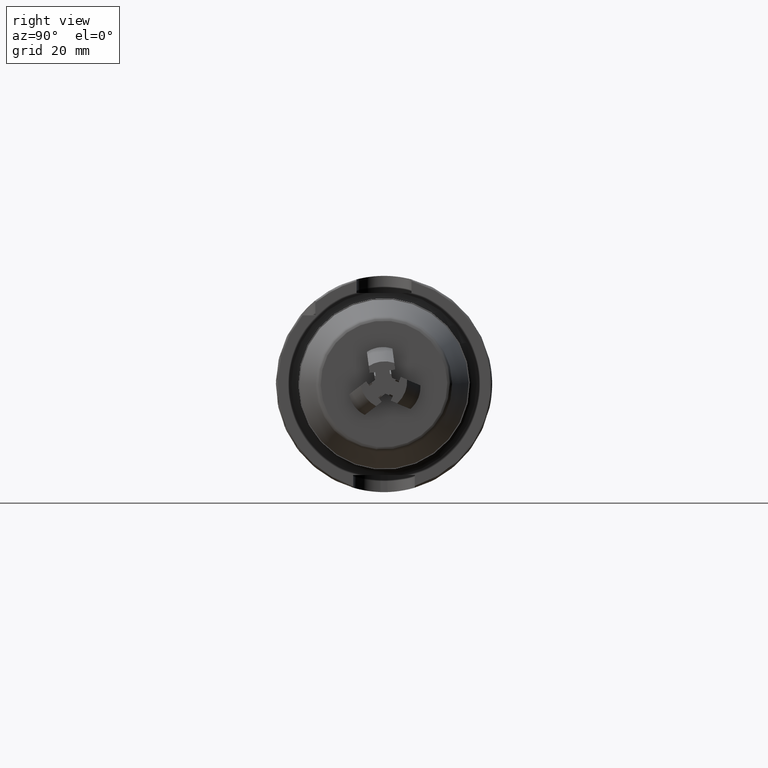
[diagram: clean part render]
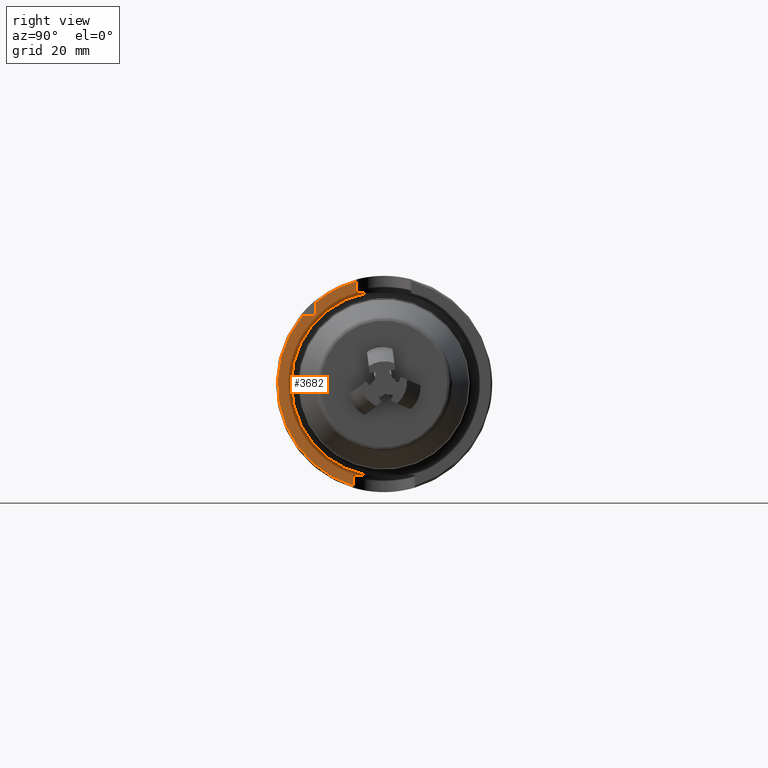
[diagram: same view with one face highlighted and labeled with its STEP entity id]
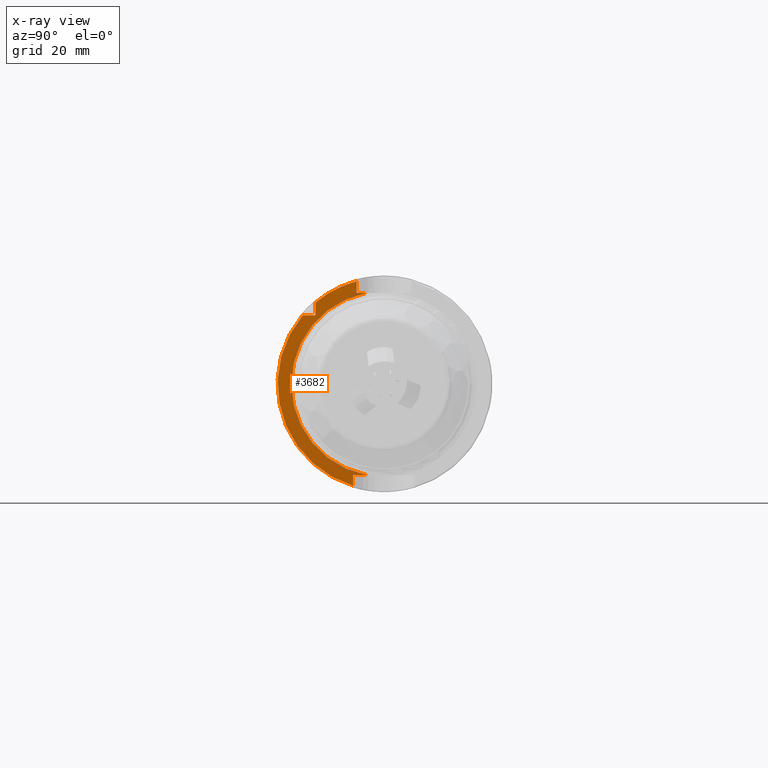
[diagram: x-ray of the same camera — body ghosted, the highlighted face saturated]
A machine part, right view. The second image highlights one B-rep face of the part: STEP entity #3682.
The next image is the same camera in x-ray: the body ghosted, the highlighted face saturated — about 0% of this face is hidden behind the body in this view.
In plain terms, the highlighted planar face has unit normal (1, 0, -0).
Its self-contained STEP definition (entity closure, byte-faithful):
#193=LINE('',#5748,#428);
#194=LINE('',#5750,#429);
#195=LINE('',#5754,#430);
#196=LINE('',#5756,#431);
#197=LINE('',#5760,#432);
#198=LINE('',#5761,#433);
#428=VECTOR('',#4548,10.);
#429=VECTOR('',#4549,10.);
#430=VECTOR('',#4552,10.);
#431=VECTOR('',#4553,10.);
#432=VECTOR('',#4556,10.);
#433=VECTOR('',#4557,10.);
#663=PLANE('',#4065);
#760=FACE_OUTER_BOUND('',#969,.T.);
#969=EDGE_LOOP('',(#2500,#2501,#2502,#2503,#2504,#2505,#2506,#2507,#2508));
#1275=CIRCLE('',#4062,27.);
#1278=CIRCLE('',#4066,31.);
#1279=CIRCLE('',#4067,31.);
#1520=VERTEX_POINT('',#5724);
#1521=VERTEX_POINT('',#5735);
#1523=VERTEX_POINT('',#5747);
#1524=VERTEX_POINT('',#5749);
#1525=VERTEX_POINT('',#5751);
#1526=VERTEX_POINT('',#5753);
#1527=VERTEX_POINT('',#5755);
#1528=VERTEX_POINT('',#5757);
#1529=VERTEX_POINT('',#5759);
#1915=EDGE_CURVE('',#1520,#1521,#1275,.T.);
#1919=EDGE_CURVE('',#1520,#1523,#193,.T.);
#1920=EDGE_CURVE('',#1523,#1524,#194,.T.);
#1921=EDGE_CURVE('',#1524,#1525,#1278,.T.);
#1922=EDGE_CURVE('',#1525,#1526,#195,.T.);
#1923=EDGE_CURVE('',#1526,#1527,#196,.T.);
#1924=EDGE_CURVE('',#1527,#1528,#1279,.T.);
#1925=EDGE_CURVE('',#1528,#1529,#197,.T.);
#1926=EDGE_CURVE('',#1529,#1521,#198,.T.);
#2500=ORIENTED_EDGE('',*,*,#1915,.F.);
#2501=ORIENTED_EDGE('',*,*,#1919,.T.);
#2502=ORIENTED_EDGE('',*,*,#1920,.T.);
#2503=ORIENTED_EDGE('',*,*,#1921,.T.);
#2504=ORIENTED_EDGE('',*,*,#1922,.T.);
#2505=ORIENTED_EDGE('',*,*,#1923,.T.);
#2506=ORIENTED_EDGE('',*,*,#1924,.T.);
#2507=ORIENTED_EDGE('',*,*,#1925,.T.);
#2508=ORIENTED_EDGE('',*,*,#1926,.T.);
#3682=ADVANCED_FACE('',(#760),#663,.T.);
#4062=AXIS2_PLACEMENT_3D('',#5736,#4540,#4541);
#4065=AXIS2_PLACEMENT_3D('',#5746,#4546,#4547);
#4066=AXIS2_PLACEMENT_3D('',#5752,#4550,#4551);
#4067=AXIS2_PLACEMENT_3D('',#5758,#4554,#4555);
#4540=DIRECTION('center_axis',(1.,0.,0.));
#4541=DIRECTION('ref_axis',(0.,-1.,-1.22464679914735E-16));
#4546=DIRECTION('center_axis',(1.,0.,0.));
#4547=DIRECTION('ref_axis',(0.,0.,-1.));
#4548=DIRECTION('',(0.,-1.,0.));
#4549=DIRECTION('',(0.,0.,1.));
#4550=DIRECTION('center_axis',(1.,0.,0.));
#4551=DIRECTION('ref_axis',(0.,0.,-1.));
#4552=DIRECTION('',(0.,0.,-1.));
#4553=DIRECTION('',(0.,-1.,0.));
#4554=DIRECTION('center_axis',(1.,0.,0.));
#4555=DIRECTION('ref_axis',(0.,0.,-1.));
#4556=DIRECTION('',(0.,0.,1.));
#4557=DIRECTION('',(0.,1.,0.));
#5724=CARTESIAN_POINT('',(26.,-5.17204021639429,26.5));
#5735=CARTESIAN_POINT('',(26.,-5.17204021639429,-26.5));
#5736=CARTESIAN_POINT('Origin',(26.,0.,0.));
#5746=CARTESIAN_POINT('Origin',(26.,0.,0.));
#5747=CARTESIAN_POINT('',(26.,-8.,26.5));
#5748=CARTESIAN_POINT('',(26.,5.55111512312578E-16,26.5));
#5749=CARTESIAN_POINT('',(26.,-8.,29.9499582637439));
#5750=CARTESIAN_POINT('',(26.,-8.,13.25));
#5751=CARTESIAN_POINT('',(26.,-20.,23.685438564654));
#5752=CARTESIAN_POINT('Origin',(26.,0.,0.));
#5753=CARTESIAN_POINT('',(26.,-20.,20.));
#5754=CARTESIAN_POINT('',(26.,-20.,10.));
#5755=CARTESIAN_POINT('',(26.,-23.685438564654,20.));
#5756=CARTESIAN_POINT('',(26.,-12.,20.));
#5757=CARTESIAN_POINT('',(26.,-9.,-29.6647939483827));
#5758=CARTESIAN_POINT('Origin',(26.,0.,0.));
#5759=CARTESIAN_POINT('',(26.,-9.,-26.5));
#5760=CARTESIAN_POINT('',(26.,-9.,-13.25));
#5761=CARTESIAN_POINT('',(26.,1.94289029309402E-15,-26.5));